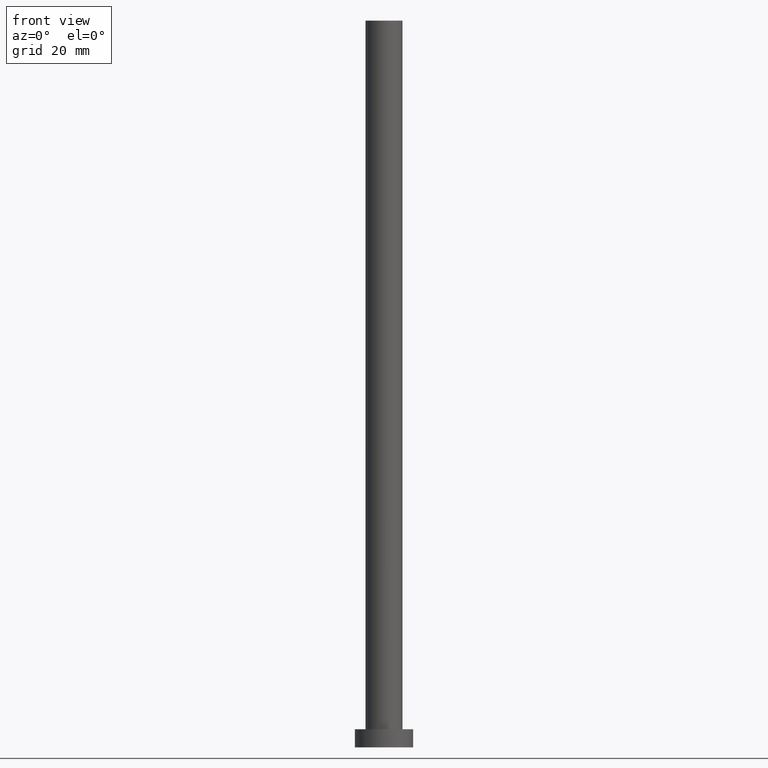
[diagram: clean part render]
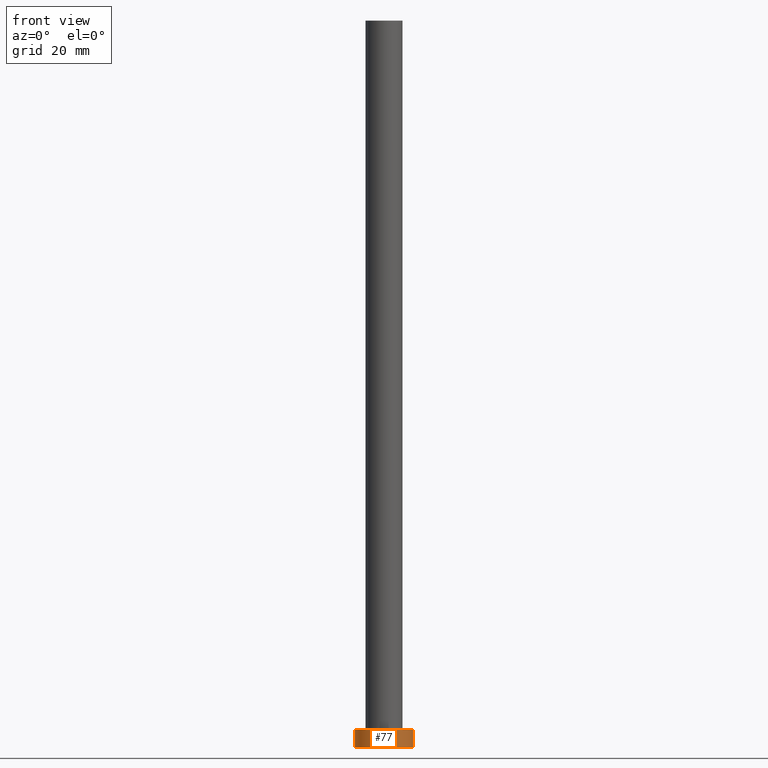
[diagram: same view with one face highlighted and labeled with its STEP entity id]
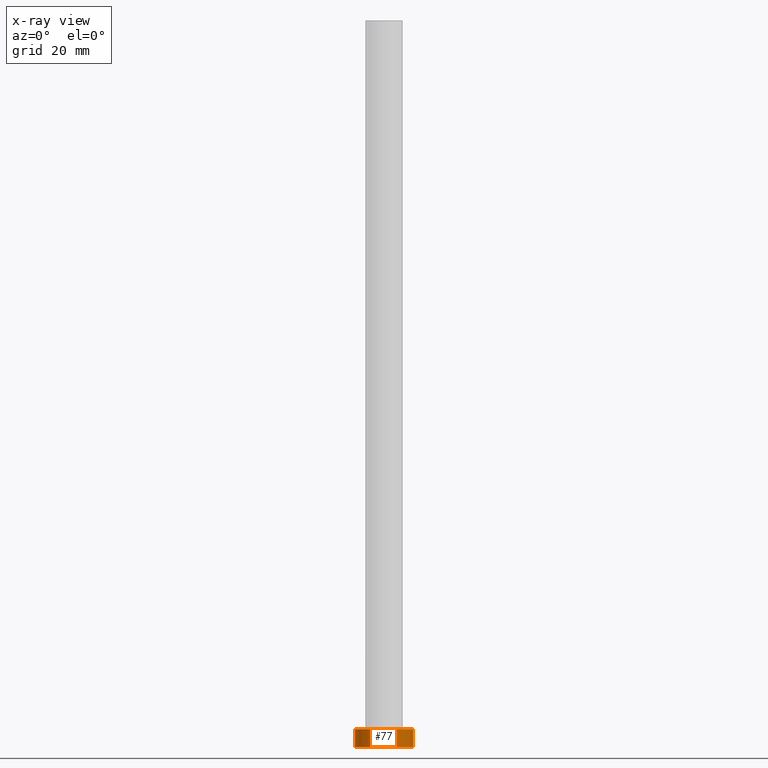
[diagram: x-ray of the same camera — body ghosted, the highlighted face saturated]
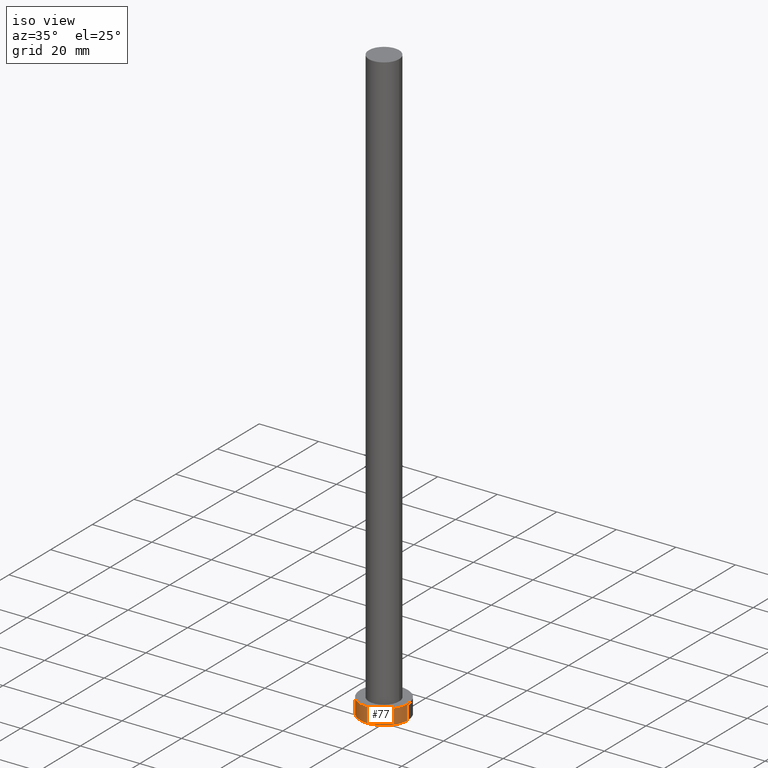
[diagram: same view with one face highlighted and labeled with its STEP entity id]
A machine part, front view. The second image highlights one B-rep face of the part: STEP entity #77.
The next image is the same camera in x-ray: the body ghosted, the highlighted face saturated — about 0% of this face is hidden behind the body in this view.
A second angle (iso view) of the same face is appended — the face is thin or edge-on in the first view.
In plain terms, the highlighted cylindrical surface (edge-blend (fillet) strip) has radius 8 mm, axis along (-0, -0, -1).
Its self-contained STEP definition (entity closure, byte-faithful):
#1 = EDGE_CURVE ( 'NONE', #16, #27, #253, .T. ) ;
#3 = CARTESIAN_POINT ( 'NONE',  ( 8.000000000000000000, 9.797174393178825657E-16, 5.000000000000000000 ) ) ;
#10 = CARTESIAN_POINT ( 'NONE',  ( 0.000000000000000000, 0.000000000000000000, 0.000000000000000000 ) ) ;
#16 = VERTEX_POINT ( 'NONE', #93 ) ;
#19 = EDGE_LOOP ( 'NONE', ( #122, #202, #98, #48 ) ) ;
#22 = DIRECTION ( 'NONE',  ( 0.000000000000000000, 0.000000000000000000, 1.000000000000000000 ) ) ;
#26 = EDGE_CURVE ( 'NONE', #16, #134, #28, .T. ) ;
#27 = VERTEX_POINT ( 'NONE', #103 ) ;
#28 = CIRCLE ( 'NONE', #172, 8.000000000000000000 ) ;
#39 = CARTESIAN_POINT ( 'NONE',  ( -8.000000000000000000, 0.000000000000000000, 5.000000000000000000 ) ) ;
#48 = ORIENTED_EDGE ( 'NONE', *, *, #167, .T. ) ;
#68 = DIRECTION ( 'NONE',  ( -0.000000000000000000, -0.000000000000000000, -1.000000000000000000 ) ) ;
#77 = ADVANCED_FACE ( 'NONE', ( #239 ), #157, .T. ) ;
#82 = VECTOR ( 'NONE', #250, 1000.000000000000000 ) ;
#84 = CARTESIAN_POINT ( 'NONE',  ( 8.000000000000000000, 9.797174393178825657E-16, 0.000000000000000000 ) ) ;
#87 = DIRECTION ( 'NONE',  ( 1.000000000000000000, 0.000000000000000000, 0.000000000000000000 ) ) ;
#93 = CARTESIAN_POINT ( 'NONE',  ( -8.000000000000000000, 0.000000000000000000, 5.000000000000000000 ) ) ;
#98 = ORIENTED_EDGE ( 'NONE', *, *, #1, .T. ) ;
#101 = DIRECTION ( 'NONE',  ( 1.000000000000000000, 0.000000000000000000, 0.000000000000000000 ) ) ;
#102 = CARTESIAN_POINT ( 'NONE',  ( 0.000000000000000000, 0.000000000000000000, 5.000000000000000000 ) ) ;
#103 = CARTESIAN_POINT ( 'NONE',  ( -8.000000000000000000, 0.000000000000000000, 0.000000000000000000 ) ) ;
#122 = ORIENTED_EDGE ( 'NONE', *, *, #210, .F. ) ;
#128 = DIRECTION ( 'NONE',  ( 0.000000000000000000, 0.000000000000000000, 1.000000000000000000 ) ) ;
#134 = VERTEX_POINT ( 'NONE', #3 ) ;
#150 = DIRECTION ( 'NONE',  ( -0.000000000000000000, -0.000000000000000000, -1.000000000000000000 ) ) ;
#157 = CYLINDRICAL_SURFACE ( 'NONE', #160, 8.000000000000000000 ) ;
#160 = AXIS2_PLACEMENT_3D ( 'NONE', #162, #68, #222 ) ;
#162 = CARTESIAN_POINT ( 'NONE',  ( 0.000000000000000000, 0.000000000000000000, 5.000000000000000000 ) ) ;
#167 = EDGE_CURVE ( 'NONE', #27, #170, #206, .T. ) ;
#170 = VERTEX_POINT ( 'NONE', #84 ) ;
#172 = AXIS2_PLACEMENT_3D ( 'NONE', #102, #22, #101 ) ;
#197 = AXIS2_PLACEMENT_3D ( 'NONE', #10, #128, #87 ) ;
#202 = ORIENTED_EDGE ( 'NONE', *, *, #26, .F. ) ;
#206 = CIRCLE ( 'NONE', #197, 8.000000000000000000 ) ;
#208 = VECTOR ( 'NONE', #150, 1000.000000000000000 ) ;
#209 = LINE ( 'NONE', #242, #82 ) ;
#210 = EDGE_CURVE ( 'NONE', #134, #170, #209, .T. ) ;
#222 = DIRECTION ( 'NONE',  ( -1.000000000000000000, 0.000000000000000000, 0.000000000000000000 ) ) ;
#239 = FACE_OUTER_BOUND ( 'NONE', #19, .T. ) ;
#242 = CARTESIAN_POINT ( 'NONE',  ( 8.000000000000000000, 9.797174393178825657E-16, 5.000000000000000000 ) ) ;
#250 = DIRECTION ( 'NONE',  ( -0.000000000000000000, -0.000000000000000000, -1.000000000000000000 ) ) ;
#253 = LINE ( 'NONE', #39, #208 ) ;